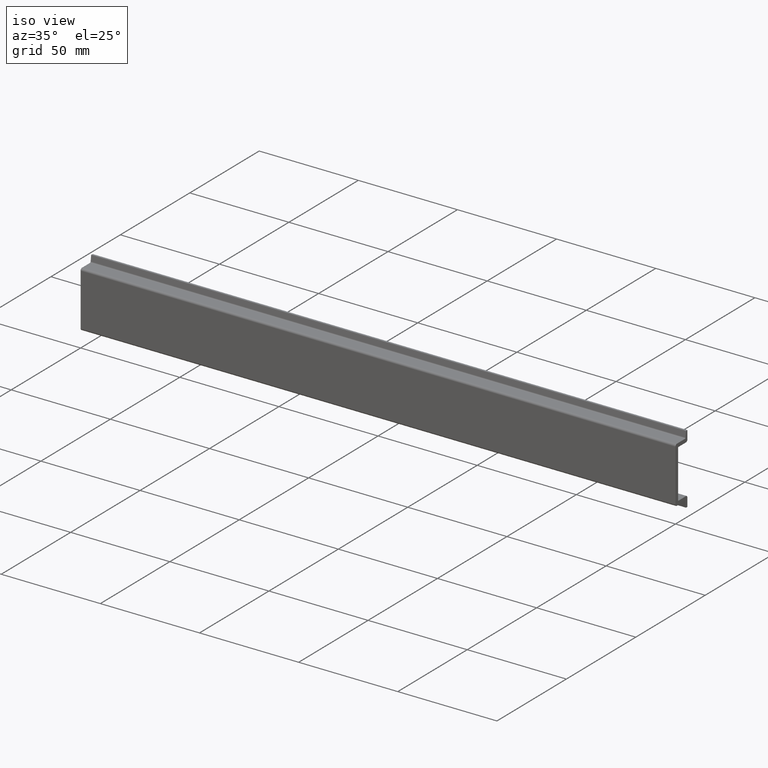
[diagram: clean part render]
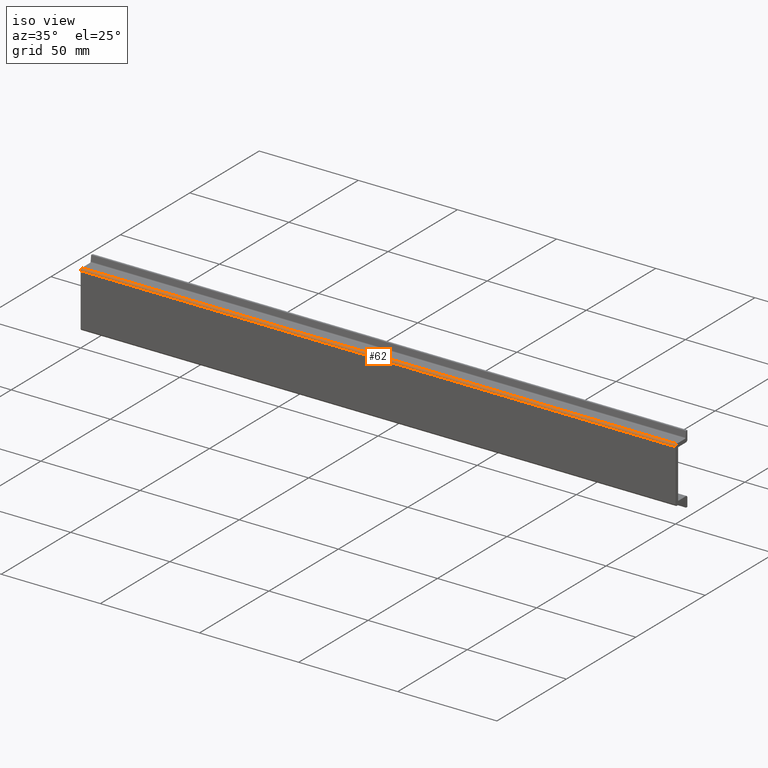
[diagram: same view with one face highlighted and labeled with its STEP entity id]
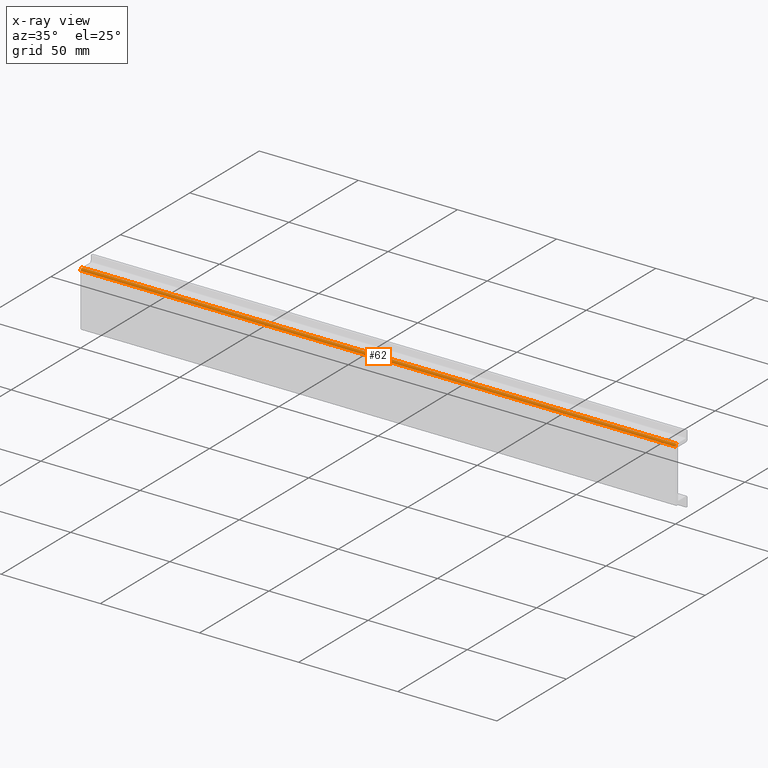
[diagram: x-ray of the same camera — body ghosted, the highlighted face saturated]
A machine part, iso view. The second image highlights one B-rep face of the part: STEP entity #62.
The next image is the same camera in x-ray: the body ghosted, the highlighted face saturated — about 0% of this face is hidden behind the body in this view.
In plain terms, the highlighted cylindrical surface (edge-blend (fillet) strip) has radius 1 mm, axis along (-1, -0, -0).
Its self-contained STEP definition (entity closure, byte-faithful):
#11 = EDGE_CURVE ( 'NONE', #231, #229, #374, .T. ) ;
#38 = EDGE_CURVE ( 'NONE', #231, #216, #731, .T. ) ;
#43 = EDGE_CURVE ( 'NONE', #229, #230, #732, .T. ) ;
#49 = EDGE_CURVE ( 'NONE', #216, #230, #477, .T. ) ;
#62 = ADVANCED_FACE ( 'NONE', ( #547 ), #526, .T. ) ;
#103 = CARTESIAN_POINT ( 'NONE',  ( 300.0000000000000000, -1.110223024625156500E-013, 26.29999999999999000 ) ) ;
#114 = CARTESIAN_POINT ( 'NONE',  ( 0.0000000000000000000, 0.9999999999998900900, 27.29999999999993700 ) ) ;
#115 = CARTESIAN_POINT ( 'NONE',  ( 0.0000000000000000000, -1.110223024625156500E-013, 26.29999999999999000 ) ) ;
#125 = CARTESIAN_POINT ( 'NONE',  ( 300.0000000000000000, 0.9999999999998900900, 27.29999999999993700 ) ) ;
#200 = EDGE_LOOP ( 'NONE', ( #269, #271, #289, #255 ) ) ;
#216 = VERTEX_POINT ( 'NONE', #103 ) ;
#229 = VERTEX_POINT ( 'NONE', #114 ) ;
#230 = VERTEX_POINT ( 'NONE', #115 ) ;
#231 = VERTEX_POINT ( 'NONE', #125 ) ;
#255 = ORIENTED_EDGE ( 'NONE', *, *, #11, .T. ) ;
#269 = ORIENTED_EDGE ( 'NONE', *, *, #43, .T. ) ;
#271 = ORIENTED_EDGE ( 'NONE', *, *, #49, .F. ) ;
#289 = ORIENTED_EDGE ( 'NONE', *, *, #38, .F. ) ;
#374 = LINE ( 'NONE', #392, #673 ) ;
#392 = CARTESIAN_POINT ( 'NONE',  ( 300.0000000000000000, 0.9999999999998900900, 27.29999999999993700 ) ) ;
#402 = DIRECTION ( 'NONE',  ( -1.000000000000000000, -0.0000000000000000000, -0.0000000000000000000 ) ) ;
#460 = CARTESIAN_POINT ( 'NONE',  ( 300.0000000000000000, 0.9999999999998898700, 26.29999999999999000 ) ) ;
#464 = DIRECTION ( 'NONE',  ( 1.000000000000000000, 0.0000000000000000000, 0.0000000000000000000 ) ) ;
#468 = CARTESIAN_POINT ( 'NONE',  ( 0.0000000000000000000, 0.9999999999998898700, 26.29999999999999000 ) ) ;
#470 = DIRECTION ( 'NONE',  ( 1.000000000000000000, 0.0000000000000000000, 0.0000000000000000000 ) ) ;
#477 = LINE ( 'NONE', #500, #711 ) ;
#485 = DIRECTION ( 'NONE',  ( 0.0000000000000000000, 0.0000000000000000000, -1.000000000000000000 ) ) ;
#487 = DIRECTION ( 'NONE',  ( 0.0000000000000000000, 0.0000000000000000000, -1.000000000000000000 ) ) ;
#500 = CARTESIAN_POINT ( 'NONE',  ( 300.0000000000000000, -1.110223024625156500E-013, 26.29999999999999000 ) ) ;
#508 = DIRECTION ( 'NONE',  ( -1.000000000000000000, -0.0000000000000000000, -0.0000000000000000000 ) ) ;
#513 = DIRECTION ( 'NONE',  ( -1.000000000000000000, -0.0000000000000000000, -0.0000000000000000000 ) ) ;
#526 = CYLINDRICAL_SURFACE ( 'NONE', #702, 0.9999999999999453800 ) ;
#532 = CARTESIAN_POINT ( 'NONE',  ( 300.0000000000000000, 0.9999999999998898700, 26.29999999999999000 ) ) ;
#545 = DIRECTION ( 'NONE',  ( 0.0000000000000000000, 0.0000000000000000000, 1.000000000000000000 ) ) ;
#547 = FACE_OUTER_BOUND ( 'NONE', #200, .T. ) ;
#673 = VECTOR ( 'NONE', #402, 1000.000000000000000 ) ;
#678 = AXIS2_PLACEMENT_3D ( 'NONE', #460, #464, #485 ) ;
#679 = AXIS2_PLACEMENT_3D ( 'NONE', #468, #470, #487 ) ;
#702 = AXIS2_PLACEMENT_3D ( 'NONE', #532, #513, #545 ) ;
#711 = VECTOR ( 'NONE', #508, 1000.000000000000000 ) ;
#731 = CIRCLE ( 'NONE', #678, 0.9999999999999453800 ) ;
#732 = CIRCLE ( 'NONE', #679, 0.9999999999999453800 ) ;